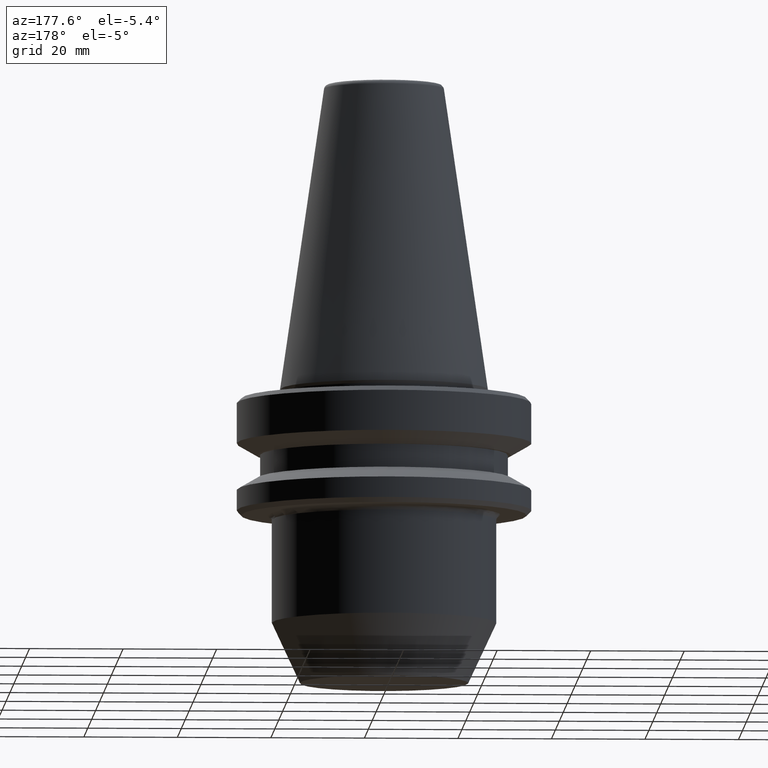
[diagram: clean part render]
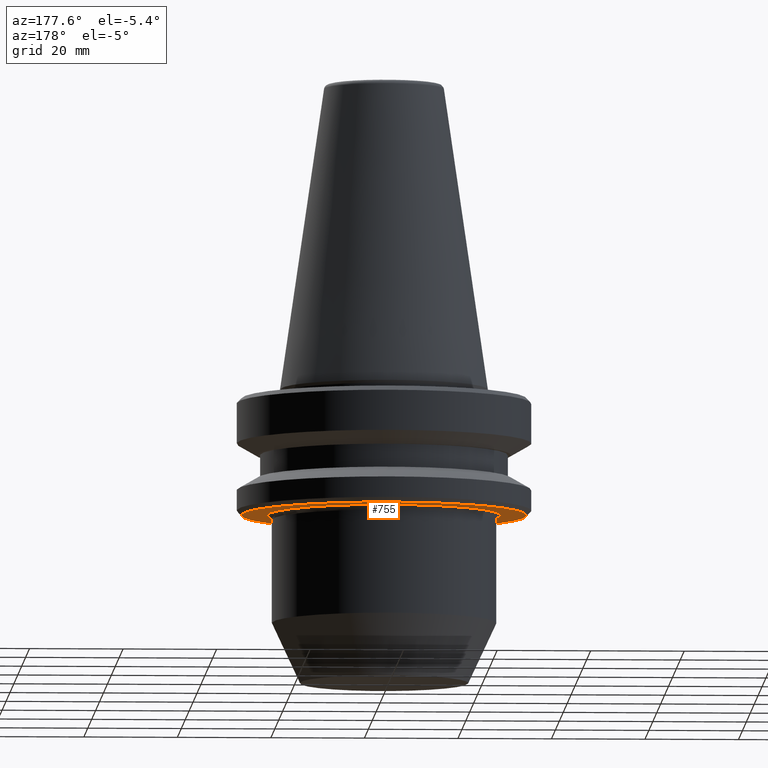
[diagram: same view with one face highlighted and labeled with its STEP entity id]
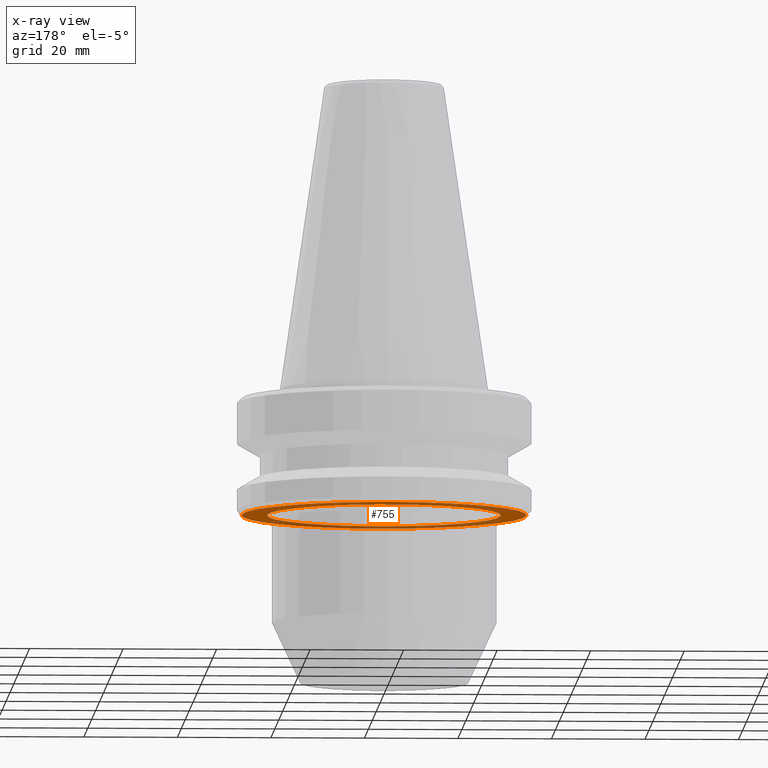
[diagram: x-ray of the same camera — body ghosted, the highlighted face saturated]
A machine part, auxiliary view. The second image highlights one B-rep face of the part: STEP entity #755.
The next image is the same camera in x-ray: the body ghosted, the highlighted face saturated — about 33% of this face is hidden behind the body in this view.
In plain terms, the highlighted planar face has unit normal (0, -0, 1).
Its self-contained STEP definition (entity closure, byte-faithful):
#59 = DIRECTION ( 'NONE',  ( 1.000000000000000000, 0.0000000000000000000, 0.0000000000000000000 ) ) ;
#122 = AXIS2_PLACEMENT_3D ( 'NONE', #660, #230, #726 ) ;
#169 = FACE_OUTER_BOUND ( 'NONE', #350, .T. ) ;
#176 = AXIS2_PLACEMENT_3D ( 'NONE', #466, #516, #847 ) ;
#179 = AXIS2_PLACEMENT_3D ( 'NONE', #780, #363, #789 ) ;
#195 = AXIS2_PLACEMENT_3D ( 'NONE', #553, #471, #613 ) ;
#196 = ORIENTED_EDGE ( 'NONE', *, *, #627, .F. ) ;
#230 = DIRECTION ( 'NONE',  ( -0.0000000000000000000, -0.0000000000000000000, 1.000000000000000000 ) ) ;
#253 = AXIS2_PLACEMENT_3D ( 'NONE', #751, #921, #59 ) ;
#273 = VERTEX_POINT ( 'NONE', #558 ) ;
#290 = CIRCLE ( 'NONE', #253, 30.49999999999997200 ) ;
#350 = EDGE_LOOP ( 'NONE', ( #616, #196 ) ) ;
#363 = DIRECTION ( 'NONE',  ( -0.0000000000000000000, -0.0000000000000000000, 1.000000000000000000 ) ) ;
#429 = PLANE ( 'NONE',  #176 ) ;
#466 = CARTESIAN_POINT ( 'NONE',  ( 0.0000000000000000000, 30.49999999999997200, -26.31128678844368800 ) ) ;
#471 = DIRECTION ( 'NONE',  ( -0.0000000000000000000, -0.0000000000000000000, 1.000000000000000000 ) ) ;
#479 = CARTESIAN_POINT ( 'NONE',  ( 25.00000000000000000, 0.0000000000000000000, -26.31128678844368800 ) ) ;
#507 = VERTEX_POINT ( 'NONE', #614 ) ;
#516 = DIRECTION ( 'NONE',  ( 0.0000000000000000000, -0.0000000000000000000, 1.000000000000000000 ) ) ;
#536 = CIRCLE ( 'NONE', #179, 30.49999999999997200 ) ;
#553 = CARTESIAN_POINT ( 'NONE',  ( 0.0000000000000000000, 0.0000000000000000000, -26.31128678844368800 ) ) ;
#558 = CARTESIAN_POINT ( 'NONE',  ( 30.49999999999997200, 0.0000000000000000000, -26.31128678844368800 ) ) ;
#573 = CIRCLE ( 'NONE', #122, 25.00000000000000000 ) ;
#613 = DIRECTION ( 'NONE',  ( 1.000000000000000000, 0.0000000000000000000, 0.0000000000000000000 ) ) ;
#614 = CARTESIAN_POINT ( 'NONE',  ( -30.49999999999997200, 3.796405077356805400E-015, -26.31128678844368800 ) ) ;
#616 = ORIENTED_EDGE ( 'NONE', *, *, #756, .F. ) ;
#627 = EDGE_CURVE ( 'NONE', #507, #273, #290, .T. ) ;
#644 = VERTEX_POINT ( 'NONE', #663 ) ;
#652 = CIRCLE ( 'NONE', #195, 25.00000000000000000 ) ;
#660 = CARTESIAN_POINT ( 'NONE',  ( 0.0000000000000000000, 0.0000000000000000000, -26.31128678844368800 ) ) ;
#663 = CARTESIAN_POINT ( 'NONE',  ( -25.00000000000000000, 3.061616997868383000E-015, -26.31128678844368800 ) ) ;
#713 = EDGE_CURVE ( 'NONE', #819, #644, #652, .T. ) ;
#726 = DIRECTION ( 'NONE',  ( 1.000000000000000000, 0.0000000000000000000, 0.0000000000000000000 ) ) ;
#730 = FACE_BOUND ( 'NONE', #1005, .T. ) ;
#751 = CARTESIAN_POINT ( 'NONE',  ( 0.0000000000000000000, 0.0000000000000000000, -26.31128678844368800 ) ) ;
#755 = ADVANCED_FACE ( 'NONE', ( #169, #730 ), #429, .F. ) ;
#756 = EDGE_CURVE ( 'NONE', #273, #507, #536, .T. ) ;
#780 = CARTESIAN_POINT ( 'NONE',  ( 0.0000000000000000000, 0.0000000000000000000, -26.31128678844368800 ) ) ;
#789 = DIRECTION ( 'NONE',  ( 1.000000000000000000, 0.0000000000000000000, 0.0000000000000000000 ) ) ;
#819 = VERTEX_POINT ( 'NONE', #479 ) ;
#847 = DIRECTION ( 'NONE',  ( 1.000000000000000000, 0.0000000000000000000, 0.0000000000000000000 ) ) ;
#887 = EDGE_CURVE ( 'NONE', #644, #819, #573, .T. ) ;
#921 = DIRECTION ( 'NONE',  ( -0.0000000000000000000, -0.0000000000000000000, 1.000000000000000000 ) ) ;
#963 = ORIENTED_EDGE ( 'NONE', *, *, #713, .T. ) ;
#981 = ORIENTED_EDGE ( 'NONE', *, *, #887, .T. ) ;
#1005 = EDGE_LOOP ( 'NONE', ( #963, #981 ) ) ;